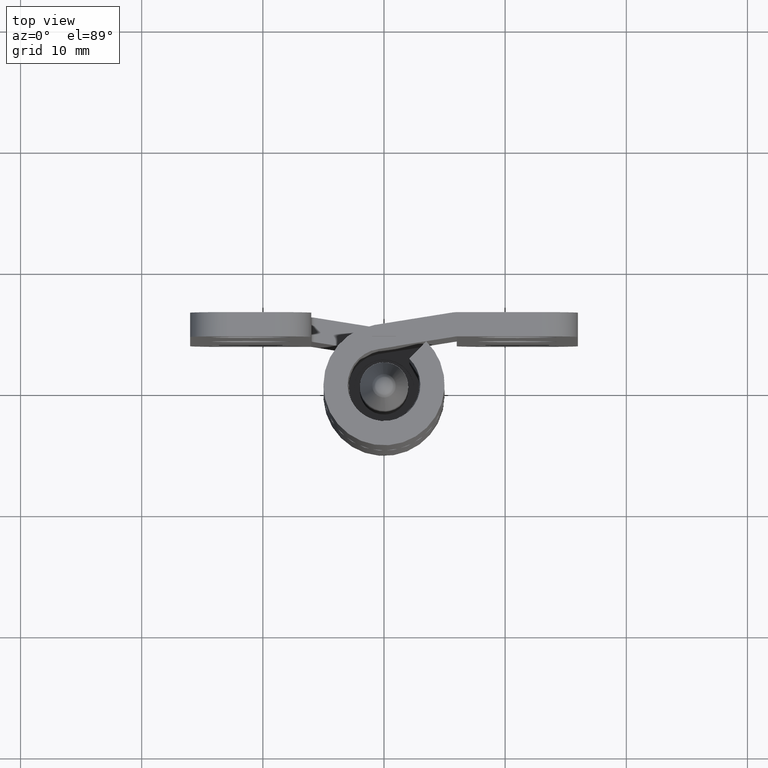
[diagram: clean part render]
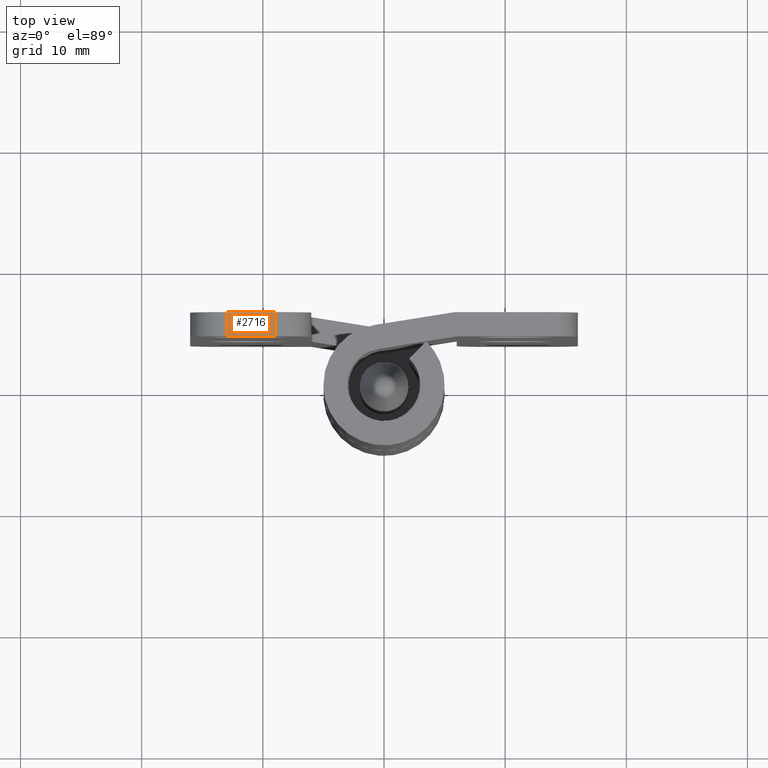
[diagram: same view with one face highlighted and labeled with its STEP entity id]
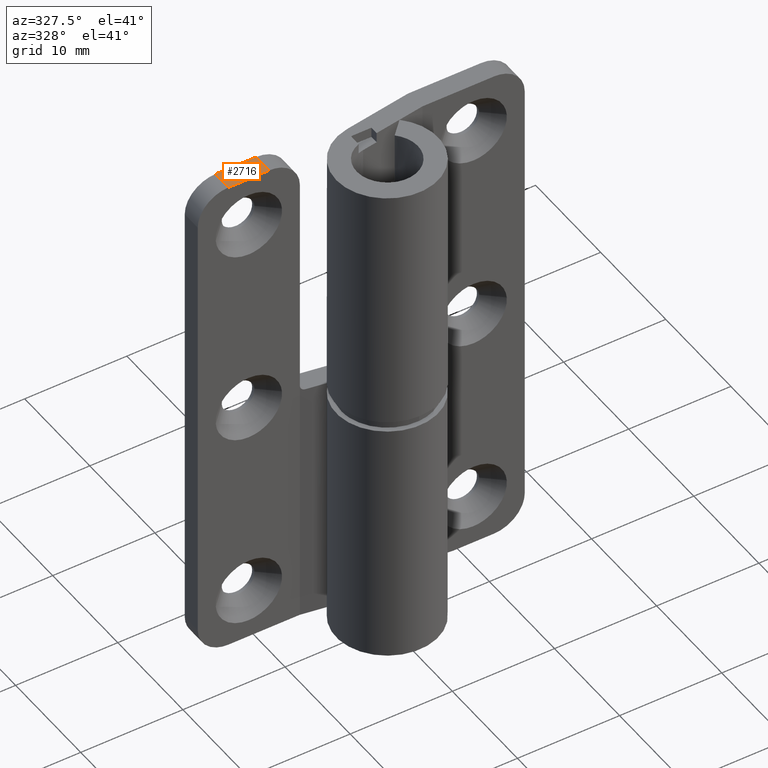
[diagram: same view with one face highlighted and labeled with its STEP entity id]
A machine part, top view. The second image highlights one B-rep face of the part: STEP entity #2716.
A second angle (auxiliary view) of the same face is appended — the face is thin or edge-on in the first view.
In plain terms, the highlighted face is a freeform B-spline surface patch.
Its self-contained STEP definition (entity closure, byte-faithful):
#2289=CARTESIAN_POINT('',(-9.0,4.000000000000100,50.0));
#2290=VERTEX_POINT('',#2289);
#2304=CARTESIAN_POINT('',(-13.000000000000201,4.000000000000100,50.0));
#2305=VERTEX_POINT('',#2304);
#2306=CARTESIAN_POINT('',(-13.000000000000201,4.000000000000100,50.0));
#2307=CARTESIAN_POINT('',(-9.0,4.000000000000100,50.0));
#2308=QUASI_UNIFORM_CURVE('',1,(#2306,#2307),.UNSPECIFIED.,.F.,.U.);
#2309=EDGE_CURVE('',#2305,#2290,#2308,.T.);
#2493=CARTESIAN_POINT('',(-9.0,6.000000000000100,50.0));
#2494=VERTEX_POINT('',#2493);
#2508=CARTESIAN_POINT('',(-9.0,4.000000000000100,50.0));
#2509=CARTESIAN_POINT('',(-9.0,6.000000000000100,50.0));
#2510=QUASI_UNIFORM_CURVE('',1,(#2508,#2509),.UNSPECIFIED.,.F.,.U.);
#2511=EDGE_CURVE('',#2290,#2494,#2510,.T.);
#2532=CARTESIAN_POINT('',(-13.000000000000201,6.000000000000100,50.0));
#2533=VERTEX_POINT('',#2532);
#2553=CARTESIAN_POINT('',(-13.000000000000201,6.000000000000100,50.0));
#2554=CARTESIAN_POINT('',(-13.000000000000201,4.000000000000100,50.0));
#2555=QUASI_UNIFORM_CURVE('',1,(#2553,#2554),.UNSPECIFIED.,.F.,.U.);
#2556=EDGE_CURVE('',#2533,#2305,#2555,.T.);
#2701=CARTESIAN_POINT('',(-13.199799992247440,3.900100003876487,50.0));
#2702=CARTESIAN_POINT('',(-8.800199900464403,3.900100003876487,50.0));
#2703=CARTESIAN_POINT('',(-13.199799992247440,6.099900049767893,50.0));
#2704=CARTESIAN_POINT('',(-8.800199900464403,6.099900049767893,50.0));
#2705=B_SPLINE_SURFACE_WITH_KNOTS('',1,1,((#2701,#2703),(#2702,#2704)),.UNSPECIFIED.,.F.,.F.,.U.,(2,2),(2,2),(0.0,4.399600091783032),(0.0,2.199800045891406),.UNSPECIFIED.);
#2706=CARTESIAN_POINT('',(-9.0,6.000000000000100,50.0));
#2707=CARTESIAN_POINT('',(-13.000000000000201,6.000000000000100,50.0));
#2708=QUASI_UNIFORM_CURVE('',1,(#2706,#2707),.UNSPECIFIED.,.F.,.U.);
#2709=EDGE_CURVE('',#2494,#2533,#2708,.T.);
#2710=ORIENTED_EDGE('',*,*,#2709,.T.);
#2711=ORIENTED_EDGE('',*,*,#2556,.T.);
#2712=ORIENTED_EDGE('',*,*,#2309,.T.);
#2713=ORIENTED_EDGE('',*,*,#2511,.T.);
#2714=EDGE_LOOP('',(#2710,#2711,#2712,#2713));
#2715=FACE_OUTER_BOUND('',#2714,.T.);
#2716=ADVANCED_FACE('',(#2715),#2705,.T.);